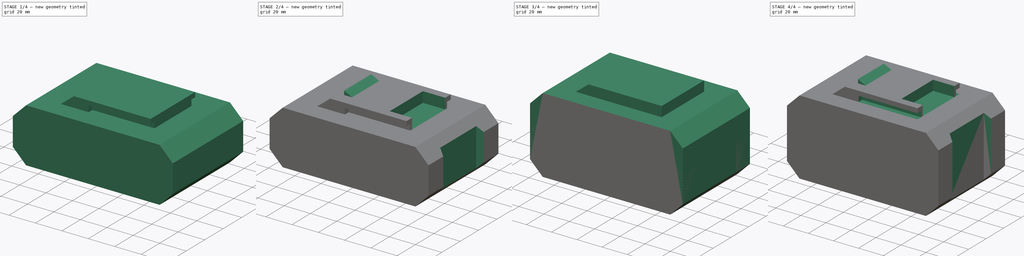
[diagram: build sequence overview — one tinted view per stage of 4, left to right]
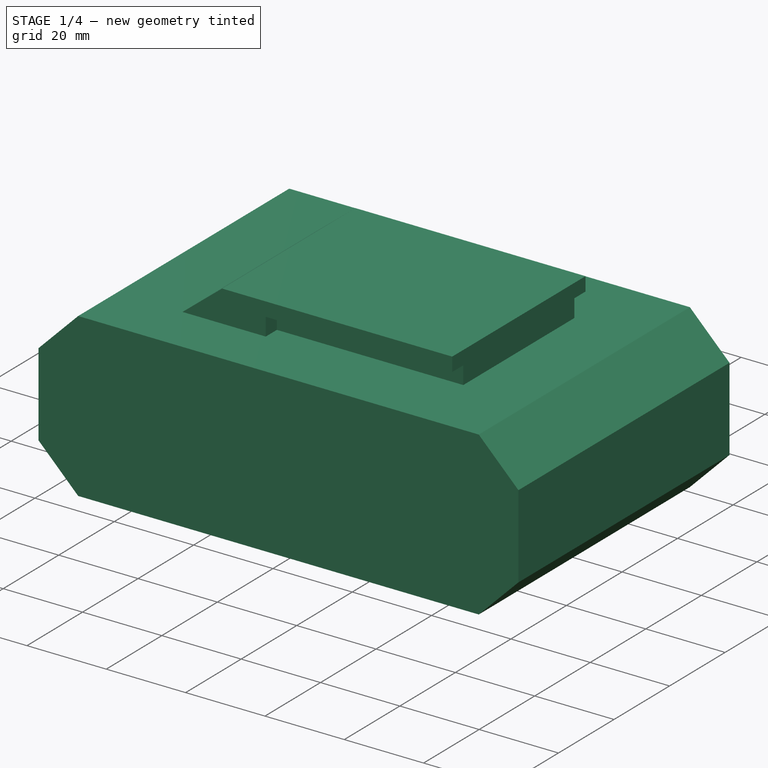
[diagram: stage 1 of 4 — iso view after this stage's code; geometry added in this stage tinted green]
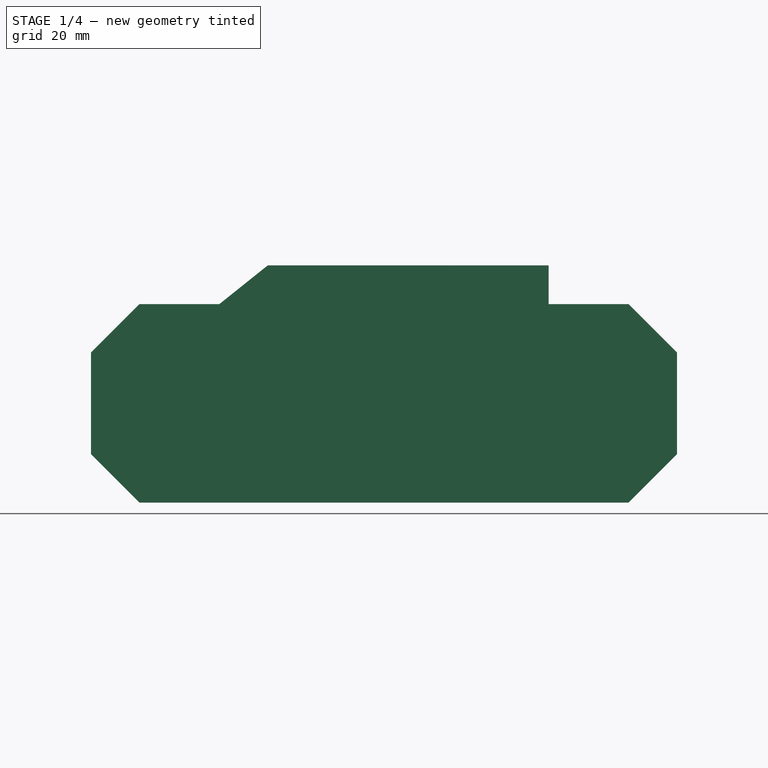
[diagram: stage 1 of 4 — front view after this stage's code; geometry added in this stage tinted green]
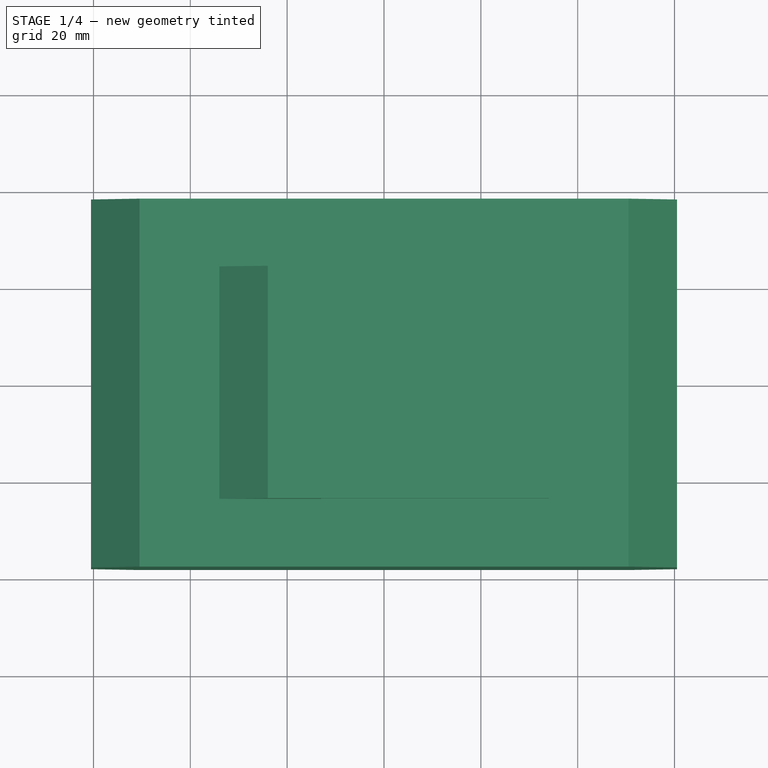
[diagram: stage 1 of 4 — top view after this stage's code; geometry added in this stage tinted green]
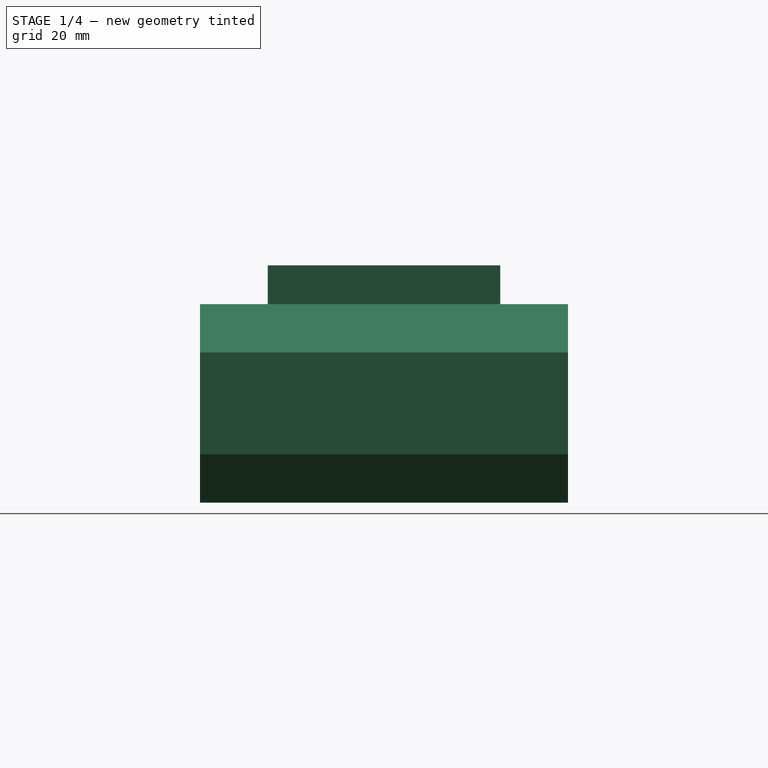
[diagram: stage 1 of 4 — right view after this stage's code; geometry added in this stage tinted green]
FCSTD DOCUMENT  (FreeCAD 0.20R)
Label: einhell_power_x-change
License: All rights reserved
LicenseURL: http://en.wikipedia.org/wiki/All_rights_reserved
objects: Sketcher::SketchObject×14, PartDesign::Pocket×8, PartDesign::Pad×6, PartDesign::Body×2
note: 44 computed .brp shape members not serialized (recipe doc carries the construction recipe); baked Part::Feature solids carry a one-line shape summary decoded from their .brp

FEATURE [PartDesign::Body] Body  label="4_0ah"
  Group = -> [Sketch,Pad,Sketch001,Pocket,Sketch002,Pad001,Sketch003,Pocket001,Sketch004,Pocket002,Sketch005,Pad002,Sketch006,Pocket003]
  Origin = -> Origin
  Tip = -> Pocket003
FEATURE [Sketcher::SketchObject] Sketch007
  FullyConstrained = true
  MapMode = 5
  Support = -> [XY_Plane001]
  sketch-geometry (4):
    g0: LineSegment StartX=-60.5 StartY=38 StartZ=0 EndX=60.5 EndY=38 EndZ=0
    g1: LineSegment StartX=60.5 StartY=38 StartZ=0 EndX=60.5 EndY=-38 EndZ=0
    g2: LineSegment StartX=60.5 StartY=-38 StartZ=0 EndX=-60.5 EndY=-38 EndZ=0
    g3: LineSegment StartX=-60.5 StartY=-38 StartZ=0 EndX=-60.5 EndY=38 EndZ=0
  constraints (10):
    c: Coincident(g0,g1)
    c: Coincident(g1,g2)
    c: Coincident(g2,g3)
    c: Coincident(g3,g0)
    c: Horizontal(g2)
    c: Vertical(g1)
    c: Symmetric(g0,g0,g-2)
    c: Symmetric(g0,g2,g-1)
    c: DistanceX(g0,g0) = 121
    c: DistanceY(g3,g3) = 76
FEATURE [PartDesign::Pad] Pad003
  Direction = (0,0,1)
  Length = 41
  Length2 = 10
  Profile = -> Sketch007
  ReferenceAxis = -> Sketch007 [N_Axis]
  Type = 0
FEATURE [Sketcher::SketchObject] Sketch008
  FullyConstrained = true
  MapMode = 5
  Placement = pos=(0,-38,0) rot=(1,0,0;1.5708rad)
  Support = -> [Pad003]
  sketch-geometry (12):
    g0: LineSegment StartX=-60.5 StartY=10 StartZ=0 EndX=-60.5 EndY=0 EndZ=0
    g1: LineSegment StartX=-60.5 StartY=0 StartZ=0 EndX=-50.5 EndY=0 EndZ=0
    g2: LineSegment StartX=-50.5 StartY=0 StartZ=0 EndX=-60.5 EndY=10 EndZ=0
    g3: LineSegment StartX=50.5 StartY=0 StartZ=0 EndX=60.5 EndY=0 EndZ=0
    g4: LineSegment StartX=60.5 StartY=0 StartZ=0 EndX=60.5 EndY=10 EndZ=0
    g5: LineSegment StartX=60.5 StartY=10 StartZ=0 EndX=50.5 EndY=0 EndZ=0
    g6: LineSegment StartX=60.5 StartY=41 StartZ=0 EndX=50.5 EndY=41 EndZ=0
    g7: LineSegment StartX=50.5 StartY=41 StartZ=0 EndX=60.5 EndY=31 EndZ=0
    g8: LineSegment StartX=60.5 StartY=31 StartZ=0 EndX=60.5 EndY=41 EndZ=0
    g9: LineSegment StartX=-60.5 StartY=41 StartZ=0 EndX=-60.5 EndY=31 EndZ=0
    g10: LineSegment StartX=-60.5 StartY=31 StartZ=0 EndX=-50.5 EndY=41 EndZ=0
    g11: LineSegment StartX=-50.5 StartY=41 StartZ=0 EndX=-60.5 EndY=41 EndZ=0
  constraints (30):
    c: Vertical(g0)
    c: Coincident(g0,g1)
    c: Coincident(g1,g2)
    c: Coincident(g2,g0)
    c: Coincident(g3,g4)
    c: Coincident(g4,g5)
    c: Coincident(g5,g3)
    c: Coincident(g6,g7)
    c: Coincident(g7,g8)
    c: Coincident(g8,g6)
    c: Vertical(g9)
    c: Coincident(g9,g10)
    c: Coincident(g10,g11)
    c: Coincident(g11,g9)
    c: Symmetric(g1,g3,g-2)
    c: Symmetric(g0,g3,g-2)
    c: Symmetric(g4,g0,g-2)
    c: Symmetric(g9,g7,g-2)
    c: Symmetric(g10,g6,g-2)
    c: Symmetric(g9,g6,g-2)
    c: Horizontal(g11)
    c: Horizontal(g1)
    c: DistanceY(g0,g0) = 10
    c: DistanceY(g9,g9) = 10
    c: DistanceX(g1,g1) = 10
    c: DistanceX(g0,g9) = 0
    c: DistanceX(g1,g10) = 0
    c: DistanceX(g0,g-1) = 60.5
    c: DistanceY(g0,g-1) = 0
    c: DistanceY(g-1,g9) = 41
FEATURE [PartDesign::Pocket] Pocket004
  BaseFeature = -> Pad003
  Direction = (0,1,-2e-16)
  Length = 5
  Length2 = 5
  Profile = -> Sketch008
  ReferenceAxis = -> Sketch008 [N_Axis]
  Type = 1
FEATURE [Sketcher::SketchObject] Sketch009
  FullyConstrained = true
  MapMode = 5
  Placement = pos=(0,0,0) rot=(1,0,0;1.5708rad)
  Support = -> [XZ_Plane001]
  sketch-geometry (4):
    g0: LineSegment StartX=-24 StartY=49 StartZ=0 EndX=-34 EndY=41 EndZ=0
    g1: LineSegment StartX=-34 StartY=41 StartZ=0 EndX=34 EndY=41 EndZ=0
    g2: LineSegment StartX=34 StartY=41 StartZ=0 EndX=34 EndY=49 EndZ=0
    g3: LineSegment StartX=34 StartY=49 StartZ=0 EndX=-24 EndY=49 EndZ=0
  constraints (12):
    c: Coincident(g0,g1)
    c: Horizontal(g1)
    c: Coincident(g1,g2)
    c: Vertical(g2)
    c: Coincident(g2,g3)
    c: Coincident(g3,g0)
    c: Horizontal(g3)
    c: DistanceY(g2,g2) = 8
    c: DistanceX(g0,g-1) = 34
    c: DistanceX(g-1,g1) = 34
    c: DistanceX(g0,g0) = 10
    c: DistanceY(g-1,g0) = 41
FEATURE [PartDesign::Pad] Pad004
  BaseFeature = -> Pocket004
  Direction = (0,-1,-2e-16)
  Length = 48
  Length2 = 10
  Midplane = true
  Profile = -> Sketch009
  ReferenceAxis = -> Sketch009 [N_Axis]
  Type = 0
FEATURE [Sketcher::SketchObject] Sketch010
  FullyConstrained = true
  MapMode = 5
  Placement = pos=(34,0,0) rot=(0.57735,0.57735,0.57735;2.0944rad)
  Support = -> [Pad004]
  sketch-geometry (8):
    g0: LineSegment StartX=-24 StartY=45.5 StartZ=0 EndX=-20 EndY=45.5 EndZ=0
    g1: LineSegment StartX=-20 StartY=45.5 StartZ=0 EndX=-20 EndY=41 EndZ=0
    g2: LineSegment StartX=-20 StartY=41 StartZ=0 EndX=-24 EndY=41 EndZ=0
    g3: LineSegment StartX=-24 StartY=41 StartZ=0 EndX=-24 EndY=45.5 EndZ=0
    g4: LineSegment StartX=20 StartY=45.5 StartZ=0 EndX=24 EndY=45.5 EndZ=0
    g5: LineSegment StartX=24 StartY=45.5 StartZ=0 EndX=24 EndY=41 EndZ=0
    g6: LineSegment StartX=24 StartY=41 StartZ=0 EndX=20 EndY=41 EndZ=0
    g7: LineSegment StartX=20 StartY=41 StartZ=0 EndX=20 EndY=45.5 EndZ=0
  constraints (21):
    c: Coincident(g0,g1)
    c: Coincident(g1,g2)
    c: Coincident(g2,g3)
    c: Coincident(g3,g0)
    c: Horizontal(g0)
    c: Horizontal(g2)
    c: Vertical(g1)
    c: Vertical(g3)
    c: Coincident(g4,g5)
    c: Coincident(g5,g6)
    c: Coincident(g6,g7)
    c: Coincident(g7,g4)
    c: Horizontal(g6)
    c: Vertical(g7)
    c: Symmetric(g2,g5,g-2)
    c: Symmetric(g0,g4,g-2)
    c: Symmetric(g0,g4,g-2)
    c: DistanceX(g2,g5) = 48
    c: DistanceY(g-1,g2) = 41
    c: DistanceY(g3,g3) = 4.5
    c: DistanceX(g0,g0) = 4
FEATURE [PartDesign::Pocket] Pocket005
  BaseFeature = -> Pad004
  Direction = (-1,0,0)
  Length = 47
  Length2 = 5
  Profile = -> Sketch010
  ReferenceAxis = -> Sketch010 [N_Axis]
  Type = 0
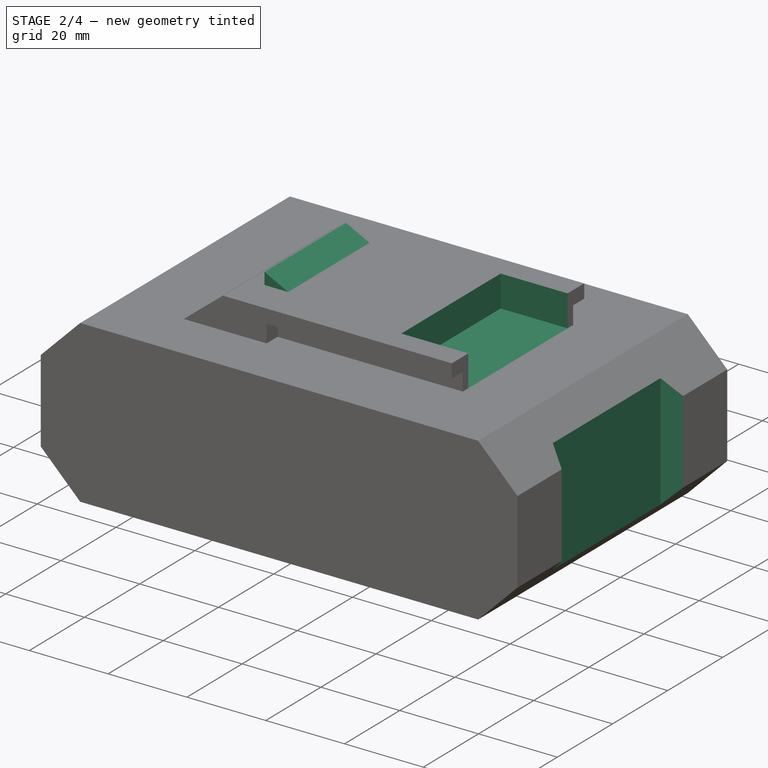
[diagram: stage 2 of 4 — iso view after this stage's code; geometry added in this stage tinted green]
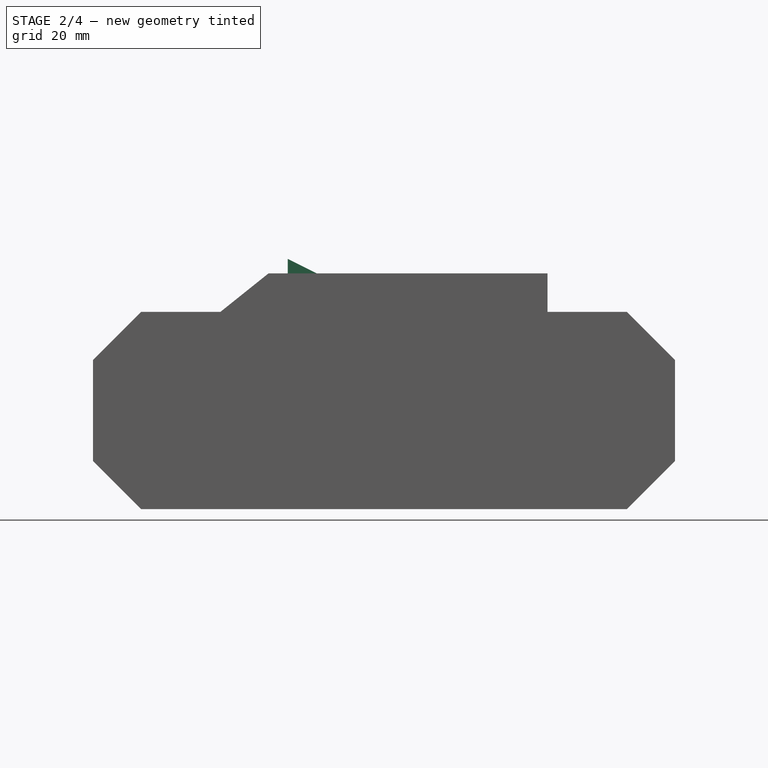
[diagram: stage 2 of 4 — front view after this stage's code; geometry added in this stage tinted green]
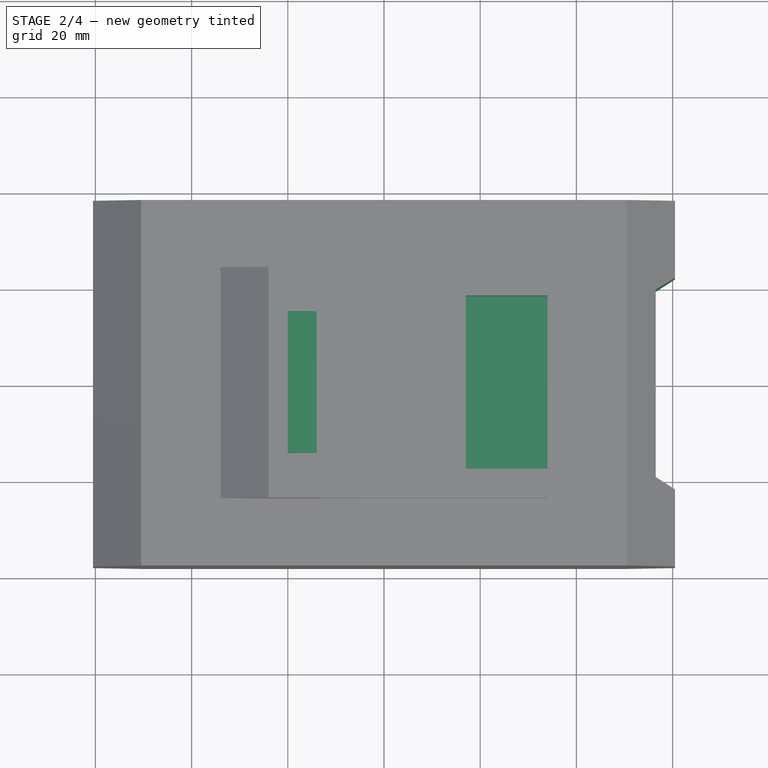
[diagram: stage 2 of 4 — top view after this stage's code; geometry added in this stage tinted green]
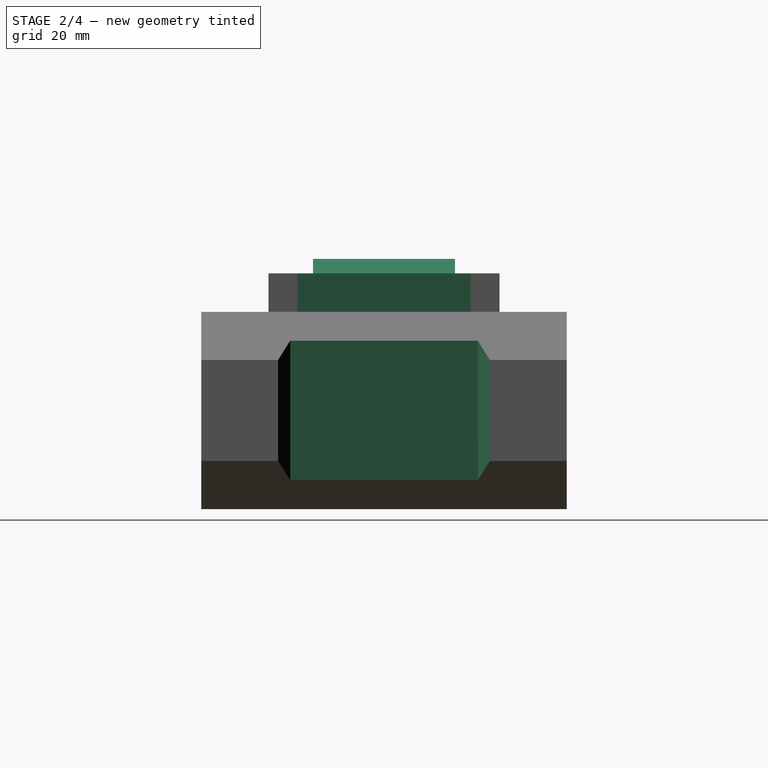
[diagram: stage 2 of 4 — right view after this stage's code; geometry added in this stage tinted green]
FEATURE [Sketcher::SketchObject] Sketch011
  FullyConstrained = true
  MapMode = 5
  Placement = pos=(34,0,0) rot=(0.57735,0.57735,0.57735;2.0944rad)
  Support = -> [Pocket005]
  sketch-geometry (4):
    g0: LineSegment StartX=-18 StartY=49 StartZ=0 EndX=18 EndY=49 EndZ=0
    g1: LineSegment StartX=18 StartY=49 StartZ=0 EndX=18 EndY=41 EndZ=0
    g2: LineSegment StartX=18 StartY=41 StartZ=0 EndX=-18 EndY=41 EndZ=0
    g3: LineSegment StartX=-18 StartY=41 StartZ=0 EndX=-18 EndY=49 EndZ=0
  constraints (11):
    c: Coincident(g0,g1)
    c: Coincident(g1,g2)
    c: Coincident(g2,g3)
    c: Coincident(g3,g0)
    c: Horizontal(g2)
    c: Vertical(g1)
    c: Vertical(g3)
    c: DistanceY(g3,g3) = 8
    c: DistanceY(g-1,g2) = 41
    c: Symmetric(g0,g0,g-2)
    c: DistanceX(g0,g0) = 36
FEATURE [PartDesign::Pocket] Pocket006
  BaseFeature = -> Pocket005
  Direction = (-1,0,0)
  Length = 17
  Length2 = 5
  Profile = -> Sketch011
  ReferenceAxis = -> Sketch011 [N_Axis]
  Type = 0
FEATURE [Sketcher::SketchObject] Sketch012
  FullyConstrained = true
  MapMode = 5
  Placement = pos=(0,0,0) rot=(1,0,0;1.5708rad)
  Support = -> [XZ_Plane001]
  sketch-geometry (3):
    g0: LineSegment StartX=-20 StartY=49 StartZ=0 EndX=-14 EndY=49 EndZ=0
    g1: LineSegment StartX=-14 StartY=49 StartZ=0 EndX=-20 EndY=52 EndZ=0
    g2: LineSegment StartX=-20 StartY=52 StartZ=0 EndX=-20 EndY=49 EndZ=0
  constraints (9):
    c: Horizontal(g0)
    c: Coincident(g0,g1)
    c: Coincident(g1,g2)
    c: Coincident(g2,g0)
    c: Vertical(g2)
    c: DistanceY(g2,g2) = 3
    c: DistanceY(g-1,g0) = 49
    c: DistanceX(g0,g0) = 6
    c: DistanceX(g0,g-1) = 20
FEATURE [PartDesign::Pad] Pad005
  BaseFeature = -> Pocket006
  Direction = (0,-1,-2e-16)
  Length = 29.5
  Length2 = 10
  Midplane = true
  Profile = -> Sketch012
  ReferenceAxis = -> Sketch012 [N_Axis]
  Type = 0
FEATURE [Sketcher::SketchObject] Sketch013
  FullyConstrained = true
  MapMode = 5
  Support = -> [XY_Plane001]
  sketch-geometry (4):
    g0: LineSegment StartX=60.5 StartY=22 StartZ=0 EndX=56.5 EndY=19.5 EndZ=0
    g1: LineSegment StartX=56.5 StartY=19.5 StartZ=0 EndX=56.5 EndY=-19.5 EndZ=0
    g2: LineSegment StartX=56.5 StartY=-19.5 StartZ=0 EndX=60.5 EndY=-22 EndZ=0
    g3: LineSegment StartX=60.5 StartY=-22 StartZ=0 EndX=60.5 EndY=22 EndZ=0
  constraints (10):
    c: Coincident(g0,g1)
    c: Coincident(g1,g2)
    c: Coincident(g2,g3)
    c: Coincident(g3,g0)
    c: Symmetric(g0,g1,g-1)
    c: Symmetric(g2,g0,g-1)
    c: DistanceX(g0,g0) = 4
    c: DistanceX(g-1,g0) = 60.5
    c: DistanceY(g3,g3) = 44
    c: DistanceY(g1,g1) = 39
FEATURE [PartDesign::Pocket] Pocket007
  BaseFeature = -> Pad005
  Direction = (0,0,-1)
  Length = 32
  Length2 = 5
  Midplane = true
  Profile = -> Sketch013
  ReferenceAxis = -> Sketch013 [N_Axis]
  Type = 1
FEATURE [PartDesign::Body] Body001  label="2_0ah"
  Group = -> [Sketch007,Pad003,Sketch008,Pocket004,Sketch009,Pad004,Sketch010,Pocket005,Sketch011,Pocket006,Sketch012,Pad005,Sketch013,Pocket007]
  Origin = -> Origin001
  Tip = -> Pocket007
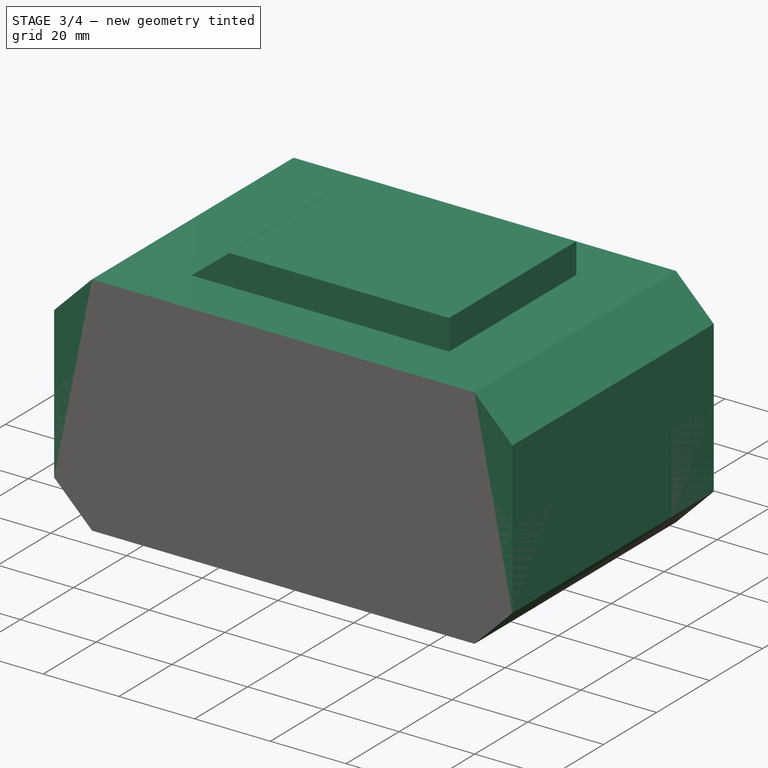
[diagram: stage 3 of 4 — iso view after this stage's code; geometry added in this stage tinted green]
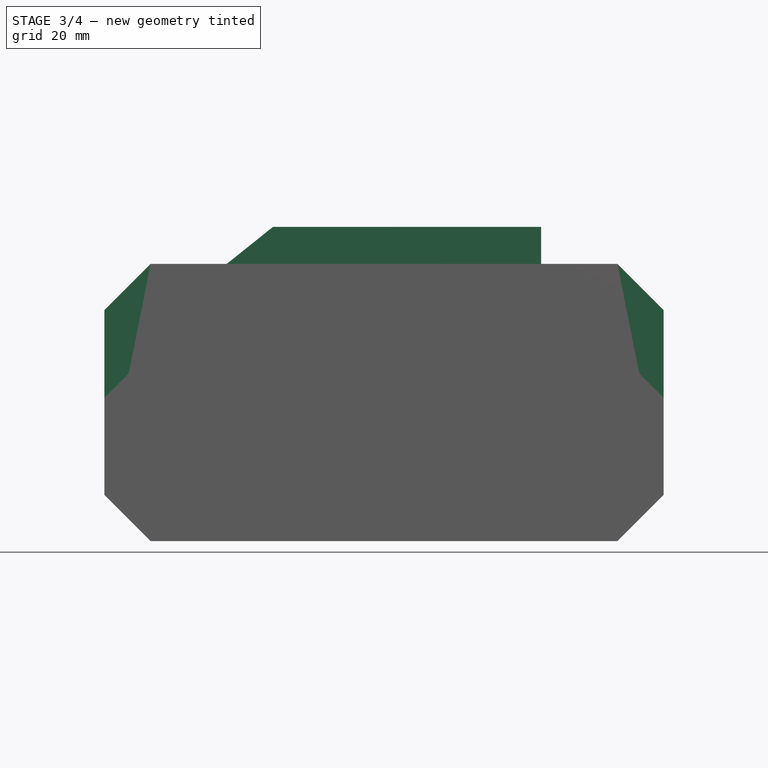
[diagram: stage 3 of 4 — front view after this stage's code; geometry added in this stage tinted green]
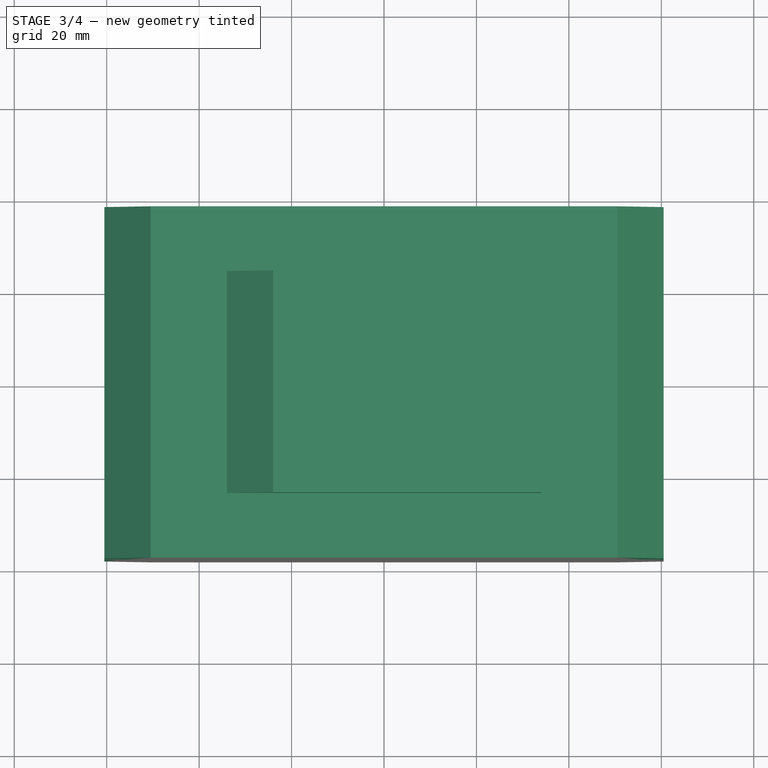
[diagram: stage 3 of 4 — top view after this stage's code; geometry added in this stage tinted green]
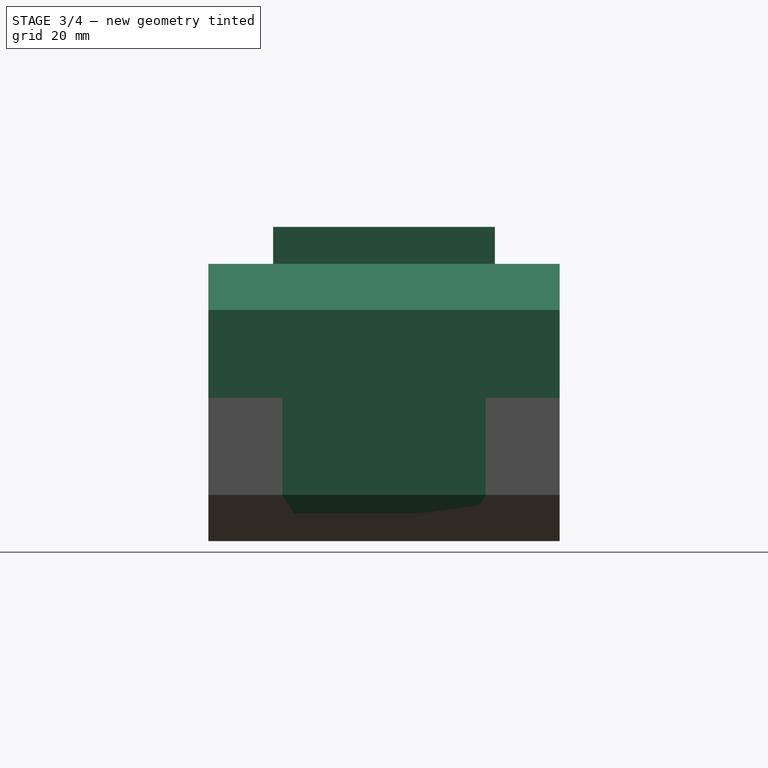
[diagram: stage 3 of 4 — right view after this stage's code; geometry added in this stage tinted green]
FEATURE [Sketcher::SketchObject] Sketch
  FullyConstrained = true
  MapMode = 5
  Support = -> [XY_Plane]
  sketch-geometry (4):
    g0: LineSegment StartX=-60.5 StartY=38 StartZ=0 EndX=60.5 EndY=38 EndZ=0
    g1: LineSegment StartX=60.5 StartY=38 StartZ=0 EndX=60.5 EndY=-38 EndZ=0
    g2: LineSegment StartX=60.5 StartY=-38 StartZ=0 EndX=-60.5 EndY=-38 EndZ=0
    g3: LineSegment StartX=-60.5 StartY=-38 StartZ=0 EndX=-60.5 EndY=38 EndZ=0
  constraints (10):
    c: Coincident(g0,g1)
    c: Coincident(g1,g2)
    c: Coincident(g2,g3)
    c: Coincident(g3,g0)
    c: Horizontal(g2)
    c: Vertical(g1)
    c: Symmetric(g0,g0,g-2)
    c: Symmetric(g0,g2,g-1)
    c: DistanceX(g0,g0) = 121
    c: DistanceY(g3,g3) = 76
FEATURE [PartDesign::Pad] Pad
  Direction = (0,0,1)
  Length = 60
  Length2 = 10
  Profile = -> Sketch
  ReferenceAxis = -> Sketch [N_Axis]
  Type = 0
FEATURE [Sketcher::SketchObject] Sketch001
  FullyConstrained = true
  MapMode = 5
  Placement = pos=(0,-38,0) rot=(1,0,0;1.5708rad)
  Support = -> [Pad]
  sketch-geometry (12):
    g0: LineSegment StartX=-60.5 StartY=10 StartZ=0 EndX=-60.5 EndY=0 EndZ=0
    g1: LineSegment StartX=-60.5 StartY=0 StartZ=0 EndX=-50.5 EndY=0 EndZ=0
    g2: LineSegment StartX=-50.5 StartY=0 StartZ=0 EndX=-60.5 EndY=10 EndZ=0
    g3: LineSegment StartX=50.5 StartY=0 StartZ=0 EndX=60.5 EndY=0 EndZ=0
    g4: LineSegment StartX=60.5 StartY=0 StartZ=0 EndX=60.5 EndY=10 EndZ=0
    g5: LineSegment StartX=60.5 StartY=10 StartZ=0 EndX=50.5 EndY=0 EndZ=0
    g6: LineSegment StartX=60.5 StartY=60 StartZ=0 EndX=50.5 EndY=60 EndZ=0
    g7: LineSegment StartX=50.5 StartY=60 StartZ=0 EndX=60.5 EndY=50 EndZ=0
    g8: LineSegment StartX=60.5 StartY=50 StartZ=0 EndX=60.5 EndY=60 EndZ=0
    g9: LineSegment StartX=-60.5 StartY=60 StartZ=0 EndX=-60.5 EndY=50 EndZ=0
    g10: LineSegment StartX=-60.5 StartY=50 StartZ=0 EndX=-50.5 EndY=60 EndZ=0
    g11: LineSegment StartX=-50.5 StartY=60 StartZ=0 EndX=-60.5 EndY=60 EndZ=0
  constraints (30):
    c: Vertical(g0)
    c: Coincident(g0,g1)
    c: Coincident(g1,g2)
    c: Coincident(g2,g0)
    c: Coincident(g3,g4)
    c: Coincident(g4,g5)
    c: Coincident(g5,g3)
    c: Coincident(g6,g7)
    c: Coincident(g7,g8)
    c: Coincident(g8,g6)
    c: Vertical(g9)
    c: Coincident(g9,g10)
    c: Coincident(g10,g11)
    c: Coincident(g11,g9)
    c: Symmetric(g1,g3,g-2)
    c: Symmetric(g0,g3,g-2)
    c: Symmetric(g4,g0,g-2)
    c: Symmetric(g9,g7,g-2)
    c: Symmetric(g10,g6,g-2)
    c: Symmetric(g9,g6,g-2)
    c: Horizontal(g11)
    c: Horizontal(g1)
    c: DistanceY(g0,g0) = 10
    c: DistanceY(g9,g9) = 10
    c: DistanceX(g1,g1) = 10
    c: DistanceX(g0,g9) = 0
    c: DistanceX(g1,g10) = 0
    c: DistanceX(g0,g-1) = 60.5
    c: DistanceY(g0,g-1) = 0
    c: DistanceY(g-1,g9) = 60
FEATURE [PartDesign::Pocket] Pocket
  BaseFeature = -> Pad
  Direction = (0,1,-2e-16)
  Length = 5
  Length2 = 5
  Profile = -> Sketch001
  ReferenceAxis = -> Sketch001 [N_Axis]
  Type = 1
FEATURE [Sketcher::SketchObject] Sketch002
  FullyConstrained = true
  MapMode = 5
  Placement = pos=(0,0,0) rot=(1,0,0;1.5708rad)
  Support = -> [XZ_Plane]
  sketch-geometry (4):
    g0: LineSegment StartX=-24 StartY=68 StartZ=0 EndX=-34 EndY=60 EndZ=0
    g1: LineSegment StartX=-34 StartY=60 StartZ=0 EndX=34 EndY=60 EndZ=0
    g2: LineSegment StartX=34 StartY=60 StartZ=0 EndX=34 EndY=68 EndZ=0
    g3: LineSegment StartX=34 StartY=68 StartZ=0 EndX=-24 EndY=68 EndZ=0
  constraints (12):
    c: Coincident(g0,g1)
    c: Horizontal(g1)
    c: Coincident(g1,g2)
    c: Vertical(g2)
    c: Coincident(g2,g3)
    c: Coincident(g3,g0)
    c: Horizontal(g3)
    c: DistanceY(g2,g2) = 8
    c: DistanceX(g0,g-1) = 34
    c: DistanceX(g-1,g1) = 34
    c: DistanceX(g0,g0) = 10
    c: DistanceY(g-1,g0) = 60
FEATURE [PartDesign::Pad] Pad001
  BaseFeature = -> Pocket
  Direction = (0,-1,-2e-16)
  Length = 48
  Length2 = 10
  Midplane = true
  Profile = -> Sketch002
  ReferenceAxis = -> Sketch002 [N_Axis]
  Type = 0
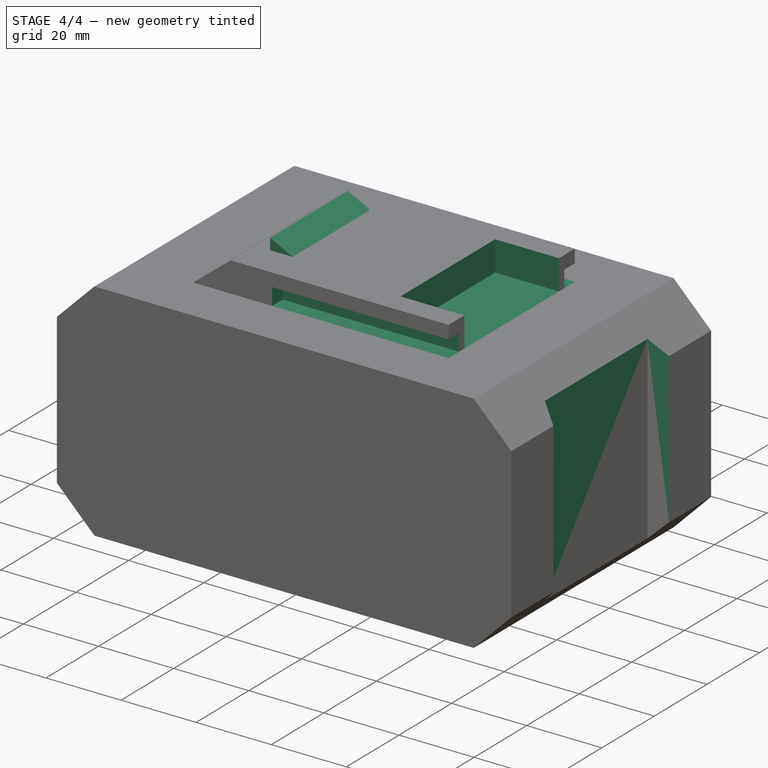
[diagram: stage 4 of 4 — iso view after this stage's code; geometry added in this stage tinted green]
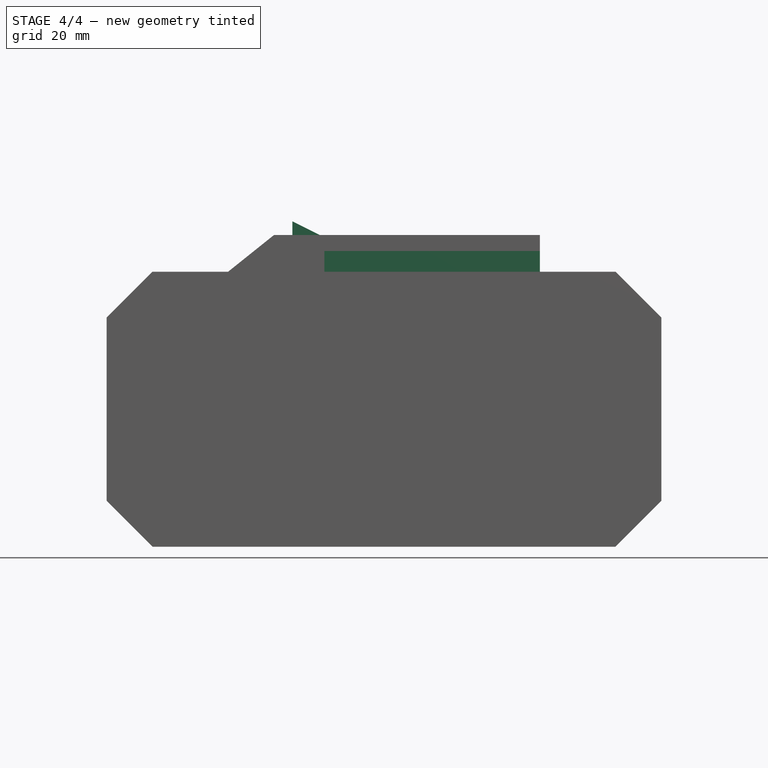
[diagram: stage 4 of 4 — front view after this stage's code; geometry added in this stage tinted green]
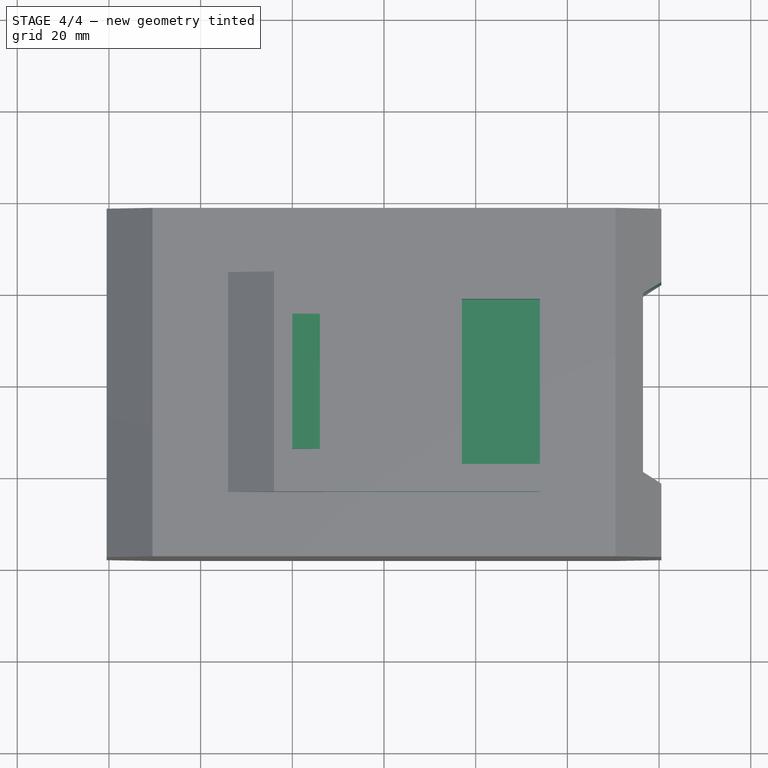
[diagram: stage 4 of 4 — top view after this stage's code; geometry added in this stage tinted green]
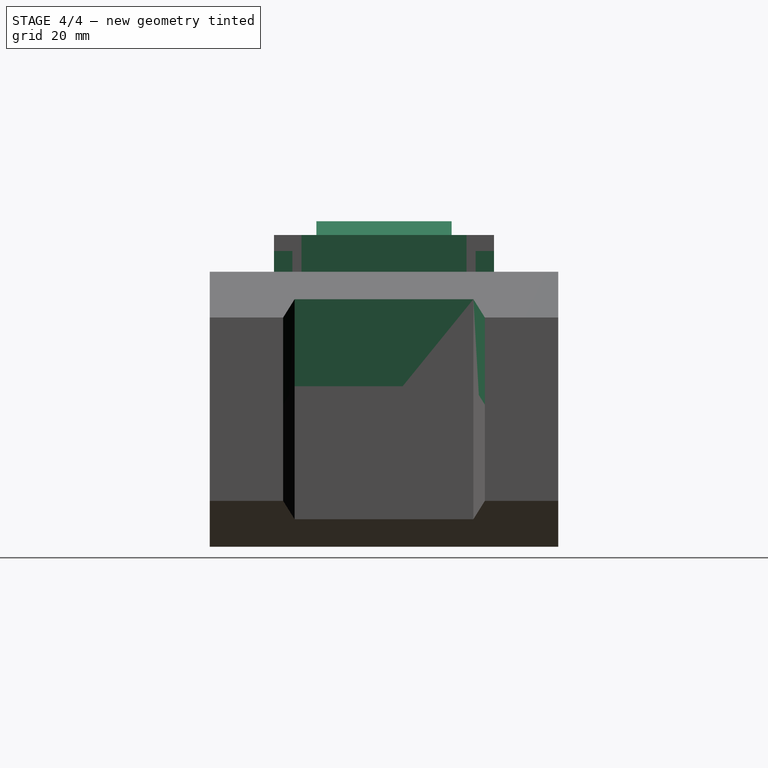
[diagram: stage 4 of 4 — right view after this stage's code; geometry added in this stage tinted green]
FEATURE [Sketcher::SketchObject] Sketch003
  FullyConstrained = true
  MapMode = 5
  Placement = pos=(34,0,0) rot=(0.57735,0.57735,0.57735;2.0944rad)
  Support = -> [Pad001]
  sketch-geometry (8):
    g0: LineSegment StartX=-24 StartY=64.5 StartZ=0 EndX=-20 EndY=64.5 EndZ=0
    g1: LineSegment StartX=-20 StartY=64.5 StartZ=0 EndX=-20 EndY=60 EndZ=0
    g2: LineSegment StartX=-20 StartY=60 StartZ=0 EndX=-24 EndY=60 EndZ=0
    g3: LineSegment StartX=-24 StartY=60 StartZ=0 EndX=-24 EndY=64.5 EndZ=0
    g4: LineSegment StartX=20 StartY=64.5 StartZ=0 EndX=24 EndY=64.5 EndZ=0
    g5: LineSegment StartX=24 StartY=64.5 StartZ=0 EndX=24 EndY=60 EndZ=0
    g6: LineSegment StartX=24 StartY=60 StartZ=0 EndX=20 EndY=60 EndZ=0
    g7: LineSegment StartX=20 StartY=60 StartZ=0 EndX=20 EndY=64.5 EndZ=0
  constraints (21):
    c: Coincident(g0,g1)
    c: Coincident(g1,g2)
    c: Coincident(g2,g3)
    c: Coincident(g3,g0)
    c: Horizontal(g0)
    c: Horizontal(g2)
    c: Vertical(g1)
    c: Vertical(g3)
    c: Coincident(g4,g5)
    c: Coincident(g5,g6)
    c: Coincident(g6,g7)
    c: Coincident(g7,g4)
    c: Horizontal(g6)
    c: Vertical(g7)
    c: Symmetric(g2,g5,g-2)
    c: Symmetric(g0,g4,g-2)
    c: Symmetric(g0,g4,g-2)
    c: DistanceX(g2,g5) = 48
    c: DistanceY(g-1,g2) = 60
    c: DistanceY(g3,g3) = 4.5
    c: DistanceX(g0,g0) = 4
FEATURE [PartDesign::Pocket] Pocket001
  BaseFeature = -> Pad001
  Direction = (-1,0,0)
  Length = 47
  Length2 = 5
  Profile = -> Sketch003
  ReferenceAxis = -> Sketch003 [N_Axis]
  Type = 0
FEATURE [Sketcher::SketchObject] Sketch004
  FullyConstrained = true
  MapMode = 5
  Placement = pos=(34,0,0) rot=(0.57735,0.57735,0.57735;2.0944rad)
  Support = -> [Pocket001]
  sketch-geometry (4):
    g0: LineSegment StartX=-18 StartY=68 StartZ=0 EndX=18 EndY=68 EndZ=0
    g1: LineSegment StartX=18 StartY=68 StartZ=0 EndX=18 EndY=60 EndZ=0
    g2: LineSegment StartX=18 StartY=60 StartZ=0 EndX=-18 EndY=60 EndZ=0
    g3: LineSegment StartX=-18 StartY=60 StartZ=0 EndX=-18 EndY=68 EndZ=0
  constraints (11):
    c: Coincident(g0,g1)
    c: Coincident(g1,g2)
    c: Coincident(g2,g3)
    c: Coincident(g3,g0)
    c: Horizontal(g2)
    c: Vertical(g1)
    c: Vertical(g3)
    c: DistanceY(g3,g3) = 8
    c: DistanceY(g-1,g2) = 60
    c: Symmetric(g0,g0,g-2)
    c: DistanceX(g0,g0) = 36
FEATURE [PartDesign::Pocket] Pocket002
  BaseFeature = -> Pocket001
  Direction = (-1,0,0)
  Length = 17
  Length2 = 5
  Profile = -> Sketch004
  ReferenceAxis = -> Sketch004 [N_Axis]
  Type = 0
FEATURE [Sketcher::SketchObject] Sketch005
  FullyConstrained = true
  MapMode = 5
  Placement = pos=(0,0,0) rot=(1,0,0;1.5708rad)
  Support = -> [XZ_Plane]
  sketch-geometry (3):
    g0: LineSegment StartX=-20 StartY=68 StartZ=0 EndX=-14 EndY=68 EndZ=0
    g1: LineSegment StartX=-14 StartY=68 StartZ=0 EndX=-20 EndY=71 EndZ=0
    g2: LineSegment StartX=-20 StartY=71 StartZ=0 EndX=-20 EndY=68 EndZ=0
  constraints (9):
    c: Horizontal(g0)
    c: Coincident(g0,g1)
    c: Coincident(g1,g2)
    c: Coincident(g2,g0)
    c: Vertical(g2)
    c: DistanceY(g2,g2) = 3
    c: DistanceY(g-1,g0) = 68
    c: DistanceX(g0,g0) = 6
    c: DistanceX(g0,g-1) = 20
FEATURE [PartDesign::Pad] Pad002
  BaseFeature = -> Pocket002
  Direction = (0,-1,-2e-16)
  Length = 29.5
  Length2 = 10
  Midplane = true
  Profile = -> Sketch005
  ReferenceAxis = -> Sketch005 [N_Axis]
  Type = 0
FEATURE [Sketcher::SketchObject] Sketch006
  FullyConstrained = true
  MapMode = 5
  Support = -> [XY_Plane]
  sketch-geometry (4):
    g0: LineSegment StartX=60.5 StartY=22 StartZ=0 EndX=56.5 EndY=19.5 EndZ=0
    g1: LineSegment StartX=56.5 StartY=19.5 StartZ=0 EndX=56.5 EndY=-19.5 EndZ=0
    g2: LineSegment StartX=56.5 StartY=-19.5 StartZ=0 EndX=60.5 EndY=-22 EndZ=0
    g3: LineSegment StartX=60.5 StartY=-22 StartZ=0 EndX=60.5 EndY=22 EndZ=0
  constraints (10):
    c: Coincident(g0,g1)
    c: Coincident(g1,g2)
    c: Coincident(g2,g3)
    c: Coincident(g3,g0)
    c: Symmetric(g0,g1,g-1)
    c: Symmetric(g2,g0,g-1)
    c: DistanceX(g0,g0) = 4
    c: DistanceX(g-1,g0) = 60.5
    c: DistanceY(g3,g3) = 44
    c: DistanceY(g1,g1) = 39
FEATURE [PartDesign::Pocket] Pocket003
  BaseFeature = -> Pad002
  Direction = (0,0,-1)
  Length = 32
  Length2 = 5
  Midplane = true
  Profile = -> Sketch006
  ReferenceAxis = -> Sketch006 [N_Axis]
  Type = 1
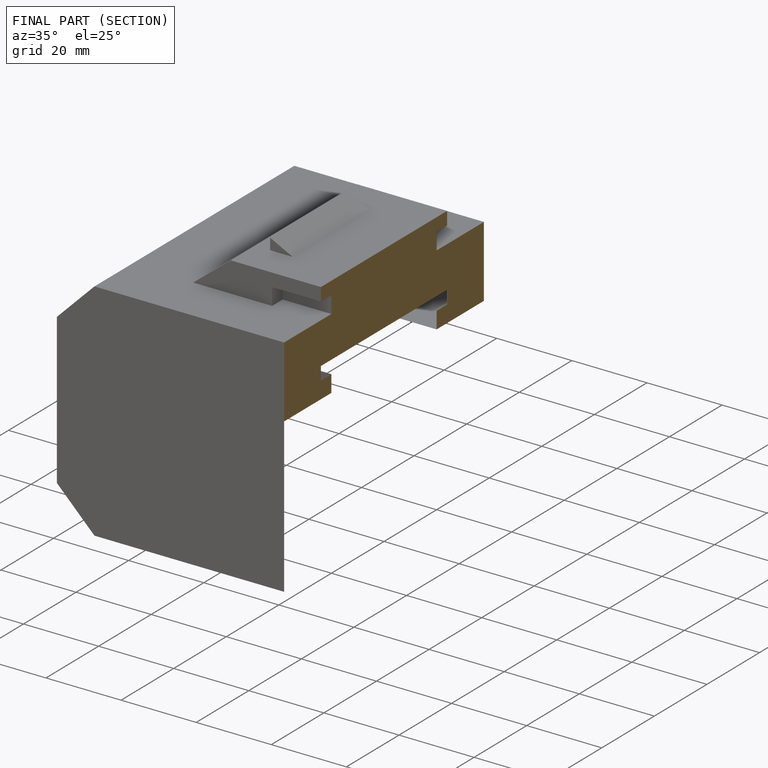
[diagram: finished part — half-section view (interior)]
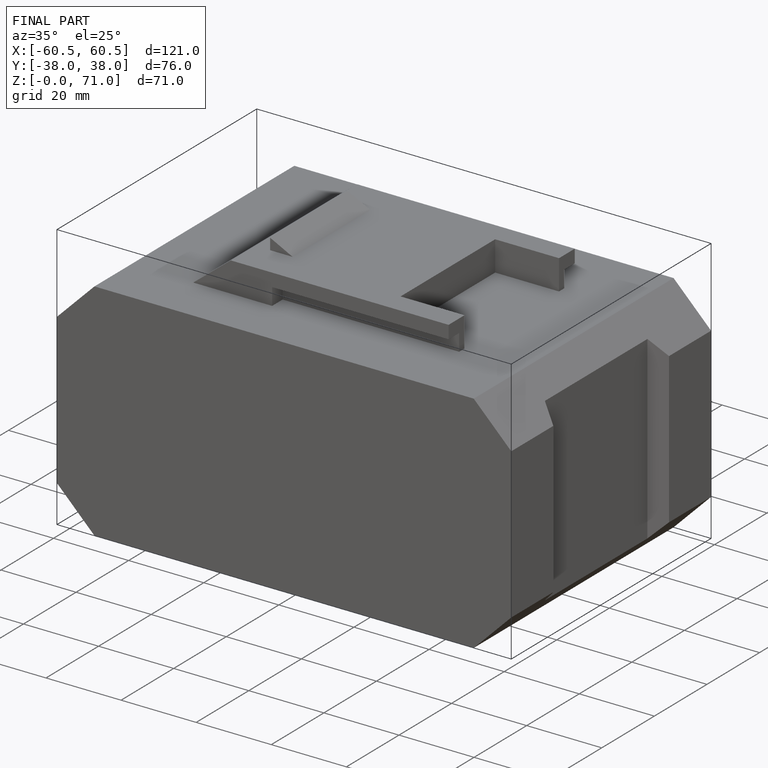
[diagram: finished part — iso view with bounding-box wireframe]
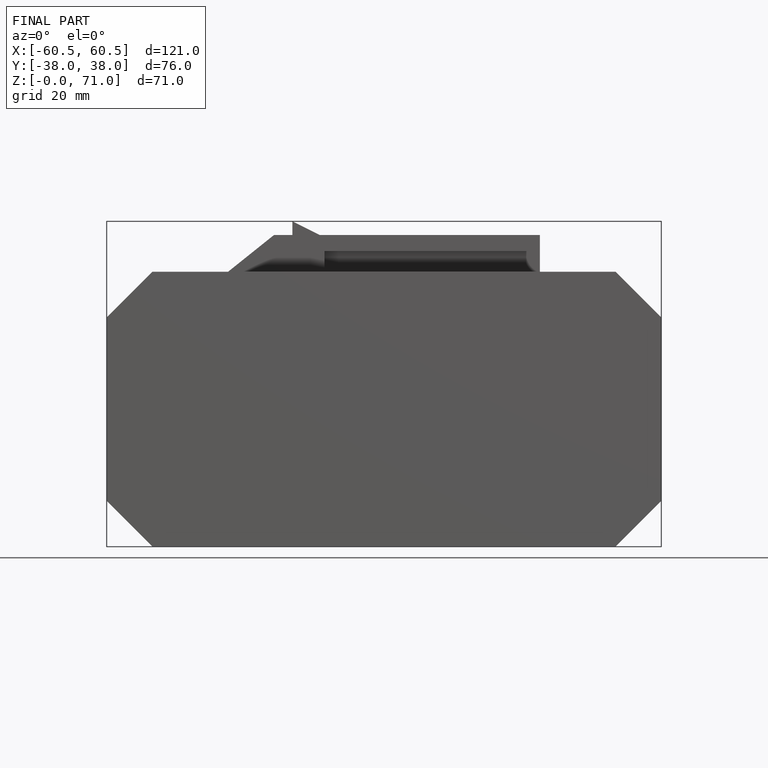
[diagram: finished part — front view with bounding-box wireframe]
